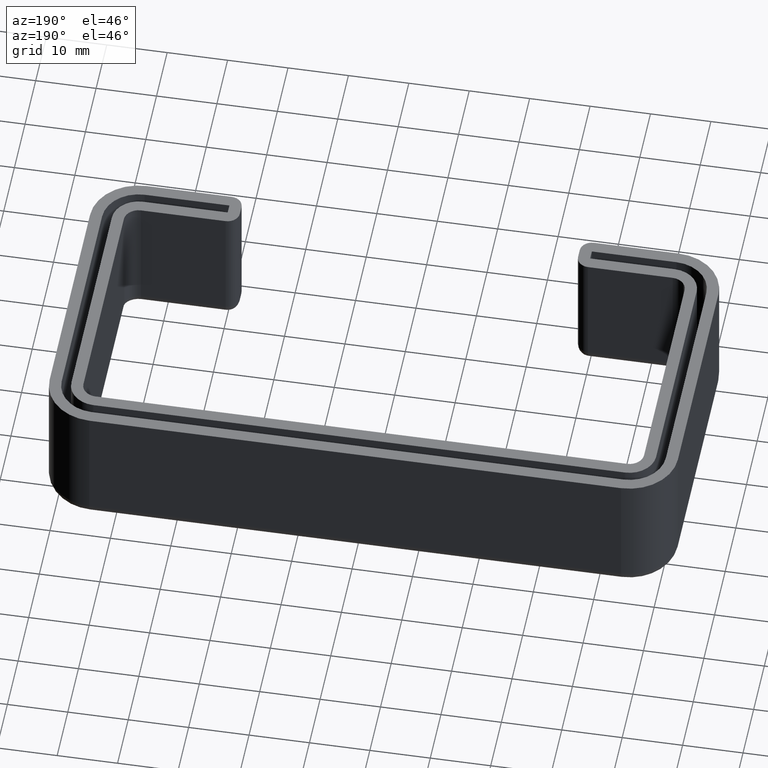
[diagram: clean part render]
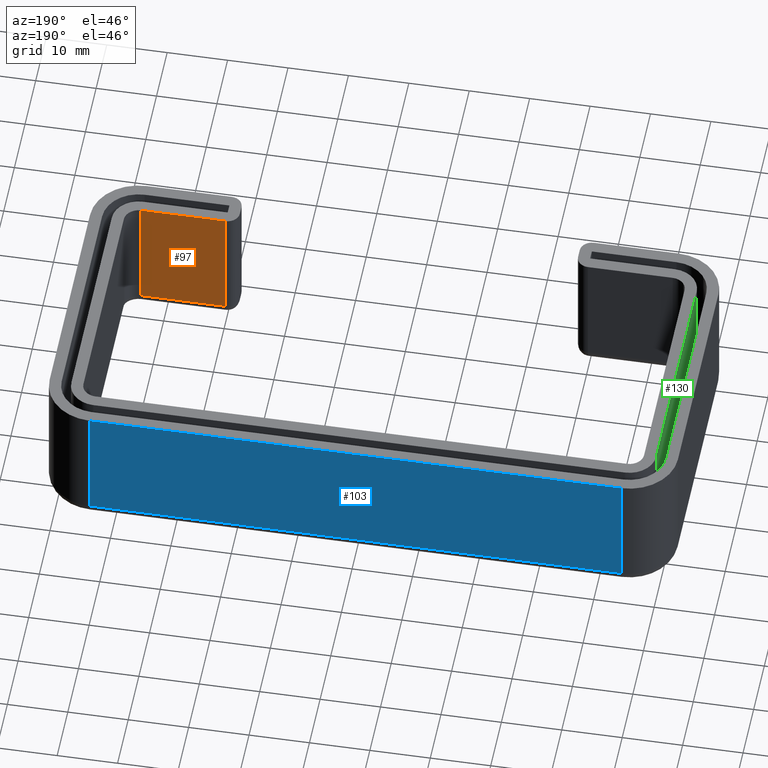
[diagram: same view with three faces highlighted in distinct colors, each labeled with its STEP entity id]
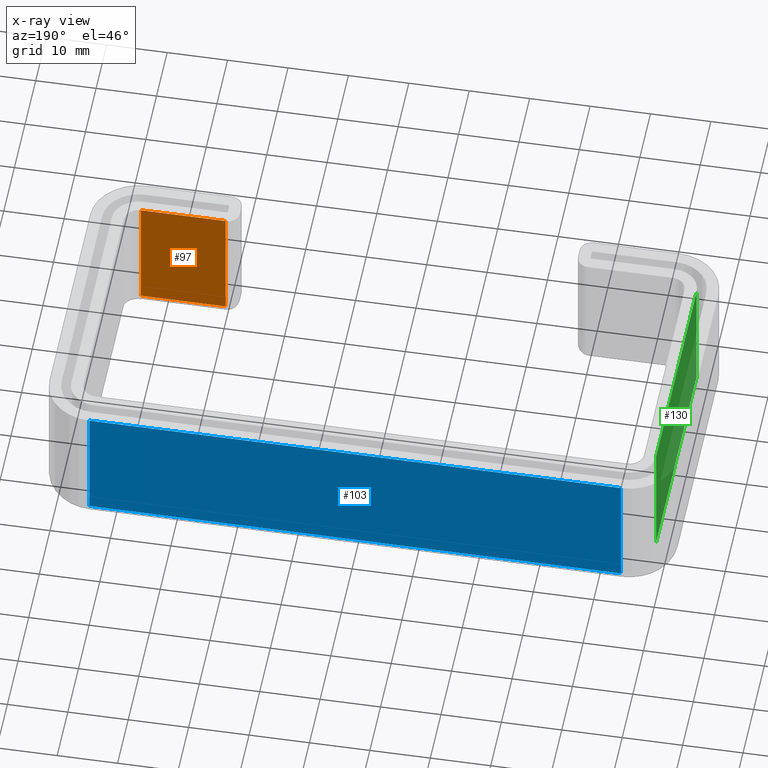
[diagram: x-ray of the same camera — body ghosted, the three highlighted faces saturated]
A machine part, auxiliary view with three faces highlighted in distinct colors.
The next image is the same camera in x-ray (body ghosted, the three faces saturated) — at least one of them is partly hidden behind the body in this view.
Their STEP definitions:

[orange] entity #97 — the highlighted planar face has unit normal (0, 1, 0).
#97 = ADVANCED_FACE( '', ( #192 ), #193, .T. );
#192 = FACE_OUTER_BOUND( '', #335, .T. );
#193 = PLANE( '', #336 );
#335 = EDGE_LOOP( '', ( #658, #659, #660, #661 ) );
#336 = AXIS2_PLACEMENT_3D( '', #662, #663, #664 );
#658 = ORIENTED_EDGE( '', *, *, #1117, .T. );
#659 = ORIENTED_EDGE( '', *, *, #1118, .T. );
#660 = ORIENTED_EDGE( '', *, *, #1119, .T. );
#661 = ORIENTED_EDGE( '', *, *, #1010, .T. );
#662 = CARTESIAN_POINT( '', ( 28.0000000000000, -21.3999999999998, -3.46944695195361E-015 ) );
#663 = DIRECTION( '', ( 0.000000000000000, 1.00000000000000, 0.000000000000000 ) );
#664 = DIRECTION( '', ( -1.00000000000000, 0.000000000000000, 0.000000000000000 ) );
#1010 = EDGE_CURVE( '', #1199, #1197, #1200, .T. );
#1117 = EDGE_CURVE( '', #1197, #1389, #1391, .T. );
#1118 = EDGE_CURVE( '', #1389, #1392, #1393, .F. );
#1119 = EDGE_CURVE( '', #1392, #1199, #1394, .F. );
#1197 = VERTEX_POINT( '', #1487 );
#1199 = VERTEX_POINT( '', #1489 );
#1200 = LINE( '', #1490, #1491 );
#1389 = VERTEX_POINT( '', #1740 );
#1391 = LINE( '', #1742, #1743 );
#1392 = VERTEX_POINT( '', #1744 );
#1393 = LINE( '', #1745, #1746 );
#1394 = LINE( '', #1747, #1748 );
#1487 = CARTESIAN_POINT( '', ( 43.9999999999997, -21.3999999999998, -3.46944695195361E-015 ) );
#1489 = CARTESIAN_POINT( '', ( 30.0000000000000, -21.3999999999998, -3.46944695195361E-015 ) );
#1490 = CARTESIAN_POINT( '', ( 28.0000000000000, -21.3999999999998, -3.46944695195361E-015 ) );
#1491 = VECTOR( '', #1870, 1000.00000000000 );
#1740 = CARTESIAN_POINT( '', ( 43.9999999999997, -21.3999999999998, -20.0000000000000 ) );
#1742 = CARTESIAN_POINT( '', ( 43.9999999999997, -21.3999999999998, -3.46944695195361E-015 ) );
#1743 = VECTOR( '', #2069, 1000.00000000000 );
#1744 = CARTESIAN_POINT( '', ( 30.0000000000000, -21.3999999999998, -20.0000000000000 ) );
#1745 = CARTESIAN_POINT( '', ( 28.0000000000000, -21.3999999999998, -20.0000000000000 ) );
#1746 = VECTOR( '', #2070, 1000.00000000000 );
#1747 = CARTESIAN_POINT( '', ( 30.0000000000000, -21.3999999999998, -3.46944695195361E-015 ) );
#1748 = VECTOR( '', #2071, 1000.00000000000 );
#1870 = DIRECTION( '', ( 1.00000000000000, 0.000000000000000, 0.000000000000000 ) );
#2069 = DIRECTION( '', ( 0.000000000000000, 0.000000000000000, -1.00000000000000 ) );
#2070 = DIRECTION( '', ( 1.00000000000000, 0.000000000000000, 0.000000000000000 ) );
#2071 = DIRECTION( '', ( 0.000000000000000, 0.000000000000000, -1.00000000000000 ) );

[blue] entity #103 — the highlighted planar face has unit normal (-0, 1, 0).
#103 = ADVANCED_FACE( '', ( #204 ), #205, .T. );
#204 = FACE_OUTER_BOUND( '', #347, .T. );
#205 = PLANE( '', #348 );
#347 = EDGE_LOOP( '', ( #700, #701, #702, #703 ) );
#348 = AXIS2_PLACEMENT_3D( '', #704, #705, #706 );
#700 = ORIENTED_EDGE( '', *, *, #1131, .T. );
#701 = ORIENTED_EDGE( '', *, *, #1132, .T. );
#702 = ORIENTED_EDGE( '', *, *, #1133, .F. );
#703 = ORIENTED_EDGE( '', *, *, #1018, .T. );
#704 = CARTESIAN_POINT( '', ( -44.0000000000000, 27.0000000000000, -3.46944695195361E-015 ) );
#705 = DIRECTION( '', ( -4.44089209850063E-017, 1.00000000000000, 0.000000000000000 ) );
#706 = DIRECTION( '', ( -1.00000000000000, -4.44089209850063E-017, 0.000000000000000 ) );
#1018 = EDGE_CURVE( '', #1215, #1213, #1216, .T. );
#1131 = EDGE_CURVE( '', #1213, #1411, #1413, .T. );
#1132 = EDGE_CURVE( '', #1411, #1414, #1415, .F. );
#1133 = EDGE_CURVE( '', #1215, #1414, #1416, .T. );
#1213 = VERTEX_POINT( '', #1507 );
#1215 = VERTEX_POINT( '', #1509 );
#1216 = LINE( '', #1510, #1511 );
#1411 = VERTEX_POINT( '', #1774 );
#1413 = LINE( '', #1776, #1777 );
#1414 = VERTEX_POINT( '', #1778 );
#1415 = LINE( '', #1779, #1780 );
#1416 = LINE( '', #1781, #1782 );
#1507 = CARTESIAN_POINT( '', ( 44.0000000000000, 27.0000000000000, -3.46944695195361E-015 ) );
#1509 = CARTESIAN_POINT( '', ( -44.0000000000000, 27.0000000000000, -3.46944695195361E-015 ) );
#1510 = CARTESIAN_POINT( '', ( -44.0000000000000, 27.0000000000000, -3.46944695195361E-015 ) );
#1511 = VECTOR( '', #1886, 1000.00000000000 );
#1774 = CARTESIAN_POINT( '', ( 44.0000000000000, 27.0000000000000, -20.0000000000000 ) );
#1776 = CARTESIAN_POINT( '', ( 44.0000000000000, 27.0000000000000, -3.46944695195361E-015 ) );
#1777 = VECTOR( '', #2087, 1000.00000000000 );
#1778 = CARTESIAN_POINT( '', ( -44.0000000000000, 27.0000000000000, -20.0000000000000 ) );
#1779 = CARTESIAN_POINT( '', ( -44.0000000000000, 27.0000000000000, -20.0000000000000 ) );
#1780 = VECTOR( '', #2088, 1000.00000000000 );
#1781 = CARTESIAN_POINT( '', ( -44.0000000000000, 27.0000000000000, -3.46944695195361E-015 ) );
#1782 = VECTOR( '', #2089, 1000.00000000000 );
#1886 = DIRECTION( '', ( 1.00000000000000, 4.44089209850063E-017, 0.000000000000000 ) );
#2087 = DIRECTION( '', ( 0.000000000000000, 0.000000000000000, -1.00000000000000 ) );
#2088 = DIRECTION( '', ( 1.00000000000000, 4.44089209850063E-017, 0.000000000000000 ) );
#2089 = DIRECTION( '', ( 0.000000000000000, 0.000000000000000, -1.00000000000000 ) );

[green] entity #130 — the highlighted planar face has unit normal (-1, 0, 0).
#130 = ADVANCED_FACE( '', ( #258 ), #259, .T. );
#258 = FACE_OUTER_BOUND( '', #401, .T. );
#259 = PLANE( '', #402 );
#401 = EDGE_LOOP( '', ( #886, #887, #888, #889 ) );
#402 = AXIS2_PLACEMENT_3D( '', #890, #891, #892 );
#886 = ORIENTED_EDGE( '', *, *, #1028, .T. );
#887 = ORIENTED_EDGE( '', *, *, #1161, .T. );
#888 = ORIENTED_EDGE( '', *, *, #1051, .T. );
#889 = ORIENTED_EDGE( '', *, *, #1048, .T. );
#890 = CARTESIAN_POINT( '', ( -48.4000000000003, -23.3999999999999, 80.0000000000000 ) );
#891 = DIRECTION( '', ( -1.00000000000000, 0.000000000000000, 0.000000000000000 ) );
#892 = DIRECTION( '', ( 0.000000000000000, 0.000000000000000, 1.00000000000000 ) );
#1028 = EDGE_CURVE( '', #1235, #1233, #1236, .T. );
#1048 = EDGE_CURVE( '', #1272, #1235, #1273, .T. );
#1051 = EDGE_CURVE( '', #1277, #1272, #1278, .T. );
#1161 = EDGE_CURVE( '', #1233, #1277, #1445, .T. );
#1233 = VERTEX_POINT( '', #1532 );
#1235 = VERTEX_POINT( '', #1534 );
#1236 = LINE( '', #1535, #1536 );
#1272 = VERTEX_POINT( '', #1586 );
#1273 = LINE( '', #1587, #1588 );
#1277 = VERTEX_POINT( '', #1593 );
#1278 = LINE( '', #1594, #1595 );
#1445 = LINE( '', #1820, #1821 );
#1532 = CARTESIAN_POINT( '', ( -48.4000000000003, 19.0000000000002, -1.04083408558608E-014 ) );
#1534 = CARTESIAN_POINT( '', ( -48.4000000000003, -18.9999999999999, -1.04083408558608E-014 ) );
#1535 = CARTESIAN_POINT( '', ( -48.4000000000003, -19.0000000000000, -3.46944695195361E-015 ) );
#1536 = VECTOR( '', #1906, 1000.00000000000 );
#1586 = CARTESIAN_POINT( '', ( -48.4000000000003, -18.9999999999999, -20.0000000000000 ) );
#1587 = CARTESIAN_POINT( '', ( -48.4000000000003, -18.9999999999999, 80.0000000000000 ) );
#1588 = VECTOR( '', #1936, 1000.00000000000 );
#1593 = CARTESIAN_POINT( '', ( -48.4000000000003, 19.0000000000001, -20.0000000000000 ) );
#1594 = CARTESIAN_POINT( '', ( -48.4000000000003, -11.6999999999999, -20.0000000000000 ) );
#1595 = VECTOR( '', #1941, 1000.00000000000 );
#1820 = CARTESIAN_POINT( '', ( -48.4000000000003, 19.0000000000002, 80.0000000000000 ) );
#1821 = VECTOR( '', #2153, 1000.00000000000 );
#1906 = DIRECTION( '', ( 0.000000000000000, 1.00000000000000, 0.000000000000000 ) );
#1936 = DIRECTION( '', ( 0.000000000000000, 0.000000000000000, 1.00000000000000 ) );
#1941 = DIRECTION( '', ( 0.000000000000000, -1.00000000000000, 0.000000000000000 ) );
#2153 = DIRECTION( '', ( 0.000000000000000, 0.000000000000000, -1.00000000000000 ) );